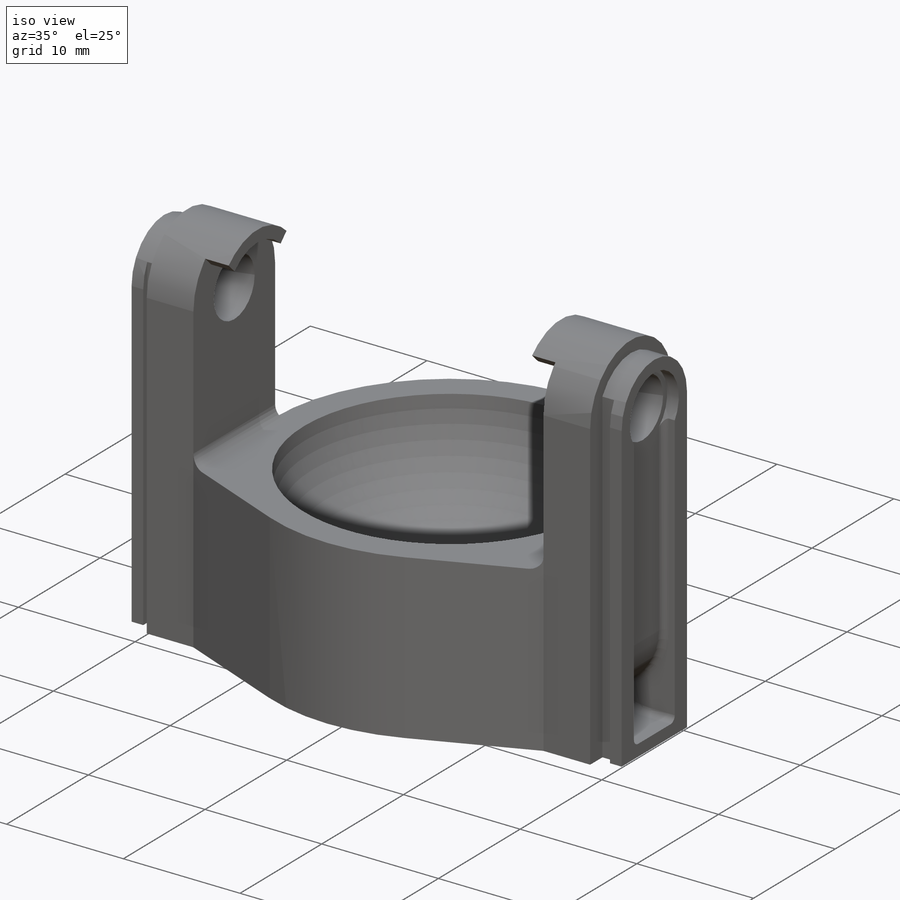
[diagram: iso view]
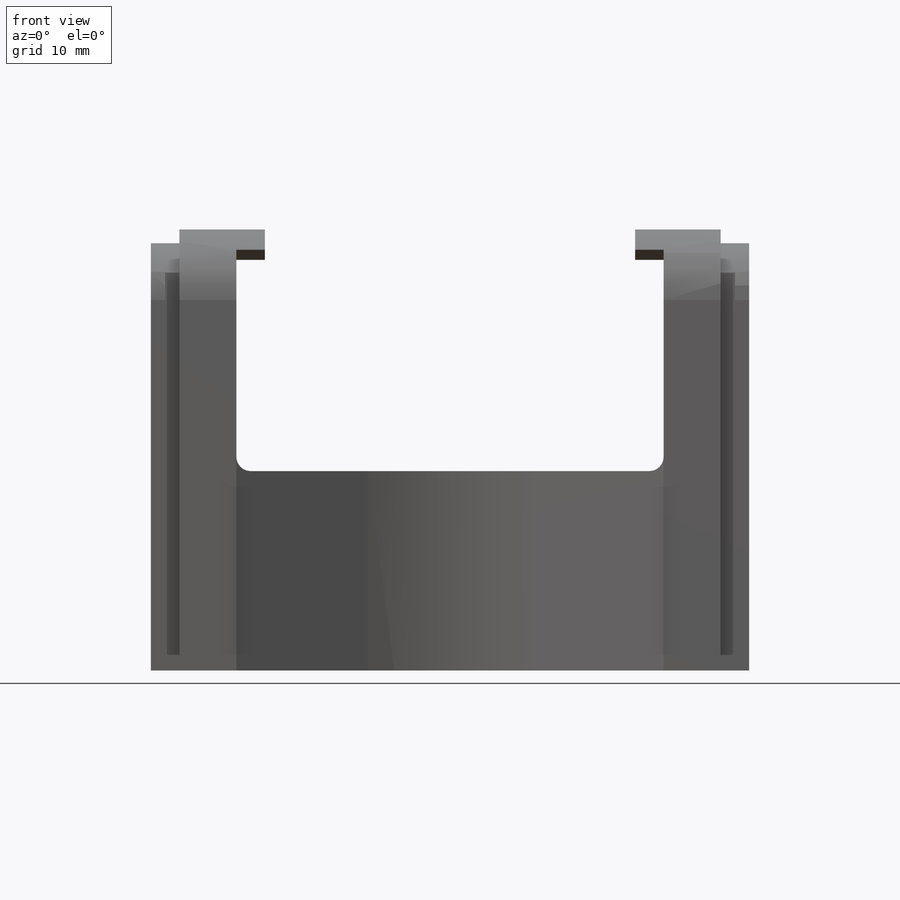
[diagram: front view]
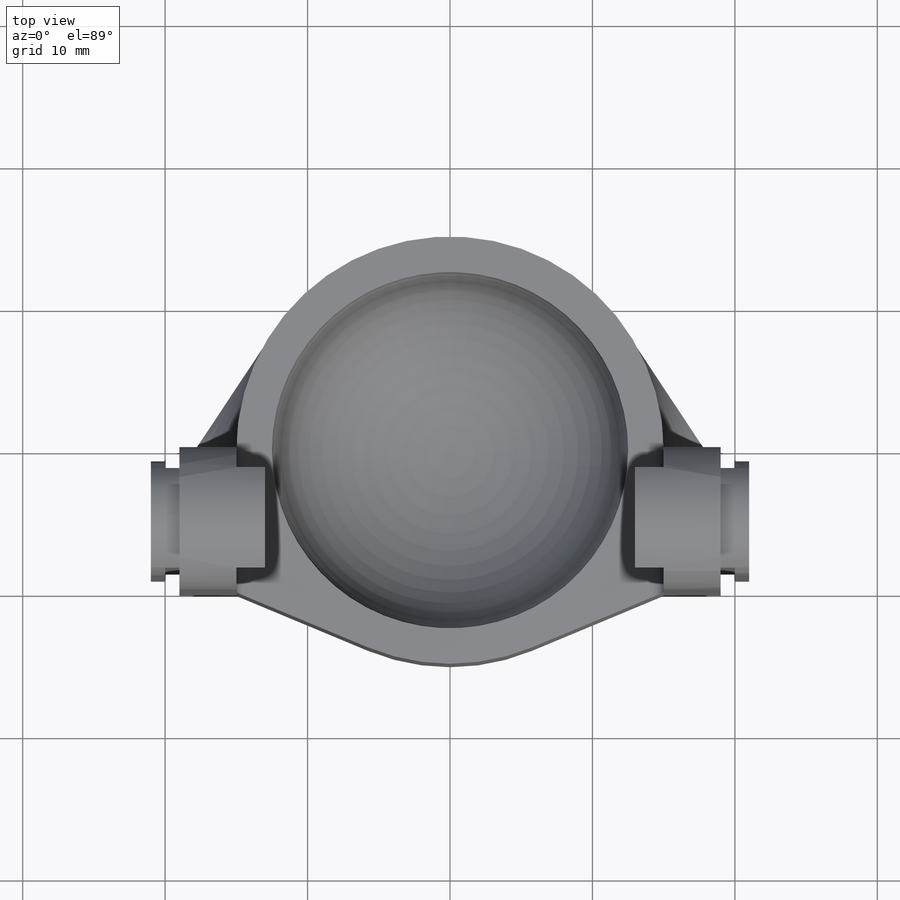
[diagram: top view]
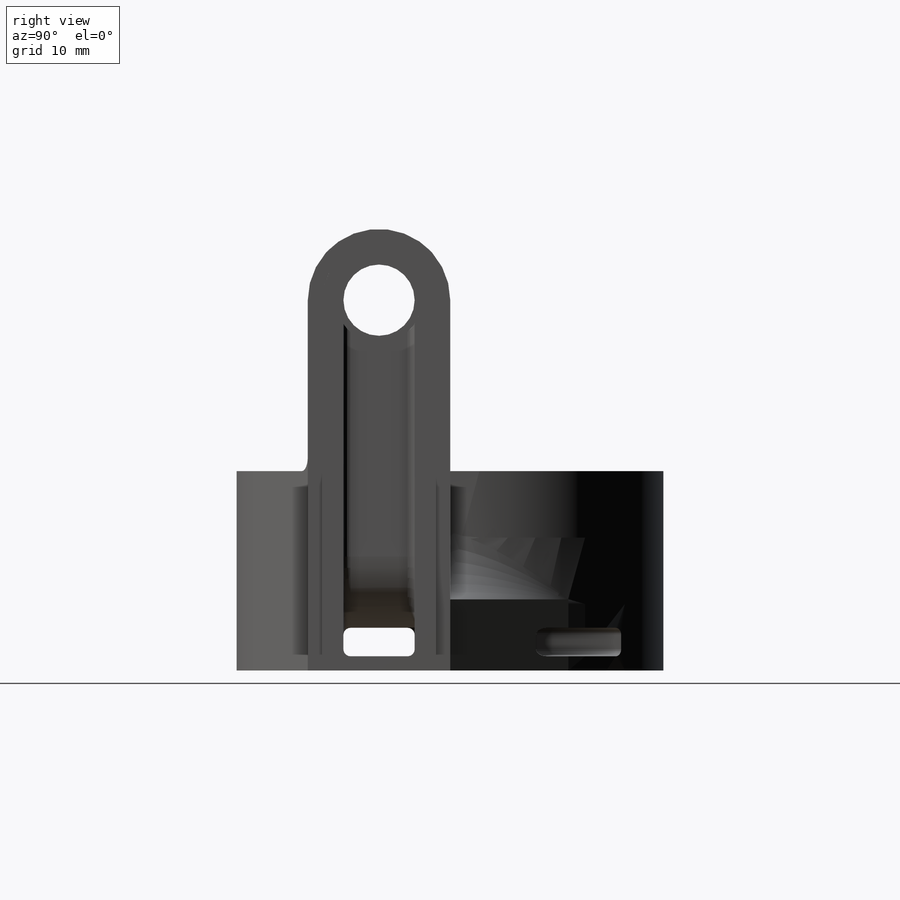
[diagram: right view]
SOLIDWORKS PART (.sldprt)
format: sldprt  version: not decoded by parser v0  size: 586,752 bytes
history: native  units: mm
features: sketch x20, cut_extrude x11, extrude x7, fillet x5, material x1, revolve x1 (+16 scaffold rows collapsed)
feature tree (61):
  scaffold x16  (default folders/planes/origin — collapsed)
  material  "Material <not specified>"
  sketch  "Sketch1"  dims[D1=12.5mm]
  revolve  "Revolve1"  Angle=360deg
  sketch  "Sketch2"  dims[D1=10.0mm]
  extrude  "Boss-Extrude1"  Depth=12mm
  sketch  "Sketch4"
  sketch  "Sketch24"
  extrude  "Boss-Extrude5"  Depth=14mm
  sketch  "Sketch8"  dims[D1=0.0mm]
  extrude  "Boss-Extrude3"  Depth=6mm
  sketch  "Sketch13"  dims[D1=0.0mm]
  extrude  "Boss-Extrude4"  Depth=6mm
  sketch  "Sketch14"  dims[D1=~2.600703mm]
  cut_extrude  "Cut-Extrude2"  [1 undecoded]
  sketch  "Sketch15"  dims[D1=~3.382936mm]
  cut_extrude  "Cut-Extrude3"  Depth=1mm
  sketch  "Sketch16"  dims[D1=~3.610593mm]
  cut_extrude  "Cut-Extrude4"  Depth=1mm
  sketch  "Sketch18"  dims[D1=25.0mm]
  cut_extrude  "Cut-Extrude5"  Depth=1mm
  sketch  "Sketch19"  dims[D1=25.0mm]
  cut_extrude  "Cut-Extrude6"  Depth=1mm
  sketch  "Sketch22"  dims[D1=2.0mm]
  cut_extrude  "Cut-Extrude8"  [1 undecoded]
  sketch  "Sketch28"
  extrude  "Boss-Extrude6"  Depth=5mm
  fillet  "Fillet14"  Radius=5mm
  fillet  "Fillet17"  Radius=1mm
  sketch  "Sketch30"  dims[D1=5.0mm]
  cut_extrude  "Cut-Extrude13"  Depth=5mm
  fillet  "Fillet21"  Radius=5mm
  fillet  "Fillet22"  Radius=5mm
  fillet  "Fillet19"  Radius=0.5mm
  sketch  "Sketch31"  dims[D1=2.0mm]
  cut_extrude  "Cut-Extrude14"  Depth=26mm
  sketch  "Sketch32"
  extrude  "Boss-Extrude7"  Depth=2mm
  sketch  "Sketch33"
  extrude  "Boss-Extrude8"  Depth=2mm
  sketch  "Sketch34"
  cut_extrude  "Cut-Extrude15"  Depth=2mm
  sketch  "Sketch35"
  cut_extrude  "Cut-Extrude16"  Depth=2mm
  sketch  "Sketch36"  dims[D1=1.0mm]
  cut_extrude  "Cut-Extrude18"  [1 undecoded]
decode coverage: 34 of 44 modeling features carry decoded parameters
note: ~ marks probable driven/reference dimensions
note: 3 parameter values undecoded
summary: no parameter record found for 3 features
note: suppression state not decoded; provenance and decode notes live in map.json
